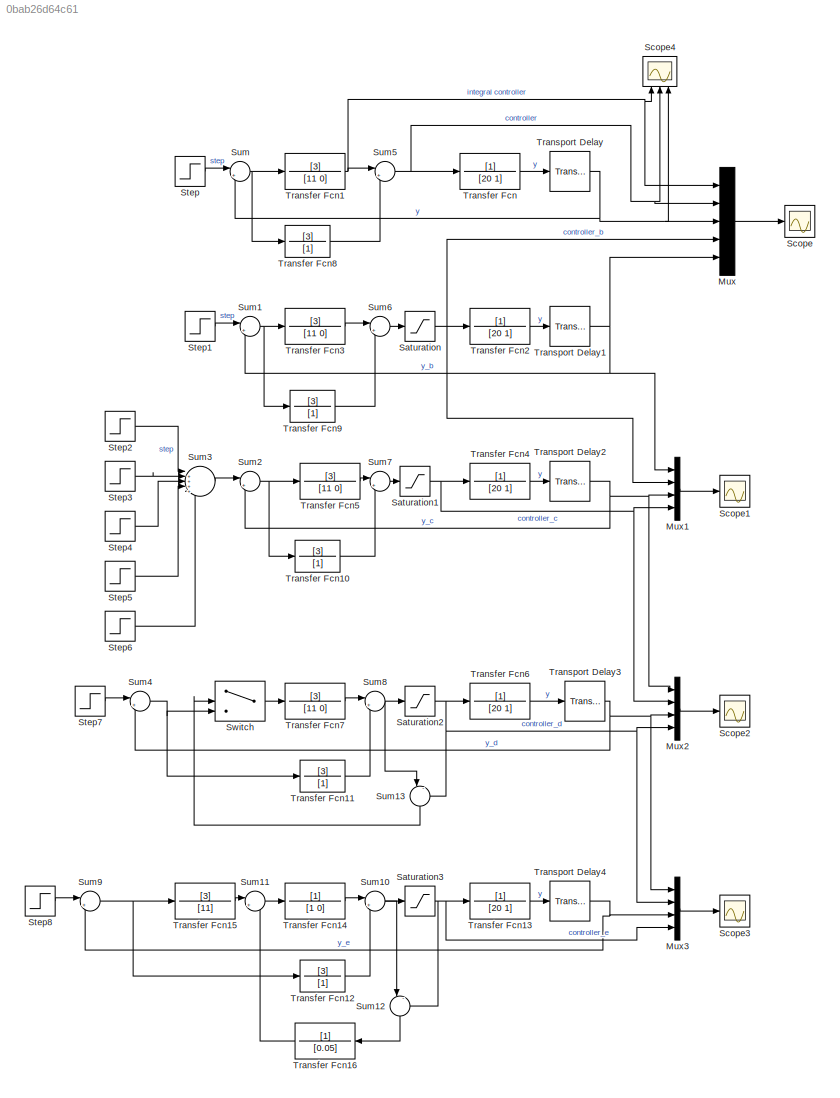
MODEL slx_0bab26d64c61
KIND model
CONFIG AbsTol = auto
CONFIG EnableMultiTasking = off
CONFIG FixedStep = auto
CONFIG MaxStep = auto
CONFIG MinStep = auto
CONFIG RelTol = 1e-3
CONFIG SampleTimeConstraint = Unconstrained
CONFIG SolverName = VariableStepAuto
CONFIG StartTime = 0.0
CONFIG StopTime = 100
BLOCK [Mux] Mux
  DisplayOption = bar
  Inputs = 5
  Ports = [5, 1]
BLOCK [Mux] Mux1
  DisplayOption = bar
  Ports = [4, 1]
BLOCK [Mux] Mux2
  DisplayOption = bar
  Ports = [4, 1]
BLOCK [Mux] Mux3
  DisplayOption = bar
  Ports = [4, 1]
BLOCK [Saturate] Saturation
  LowerLimit = -2
  UpperLimit = 2
BLOCK [Saturate] Saturation1
  LowerLimit = -2
  UpperLimit = 2
BLOCK [Saturate] Saturation2
  LowerLimit = -2
  UpperLimit = 2
BLOCK [Saturate] Saturation3
  LowerLimit = -2
  UpperLimit = 2
BLOCK [Scope] Scope
  Floating = off
  NumInputPorts = 1
  Ports = [1]
  ScopeSpecificationString = Simulink.scopes.TimeScopeBlockCfg('CurrentConfiguration', extmgr.ConfigurationSet(extmgr.Configuration('Core','General UI',true,'FigureColor',[1 1 1]),extmgr.Configuration('Core','Source UI',true),extmgr.Configuration('Sources','WiredSimulink',true,'DataLoggingVariableName','ScopeData1'),extmgr.Configuration('Visuals','Time Domain',true,'SerializedDisplays',{struct('MinYLimReal','-0.51108','MaxYLi...<+1578ch>
BLOCK [Scope] Scope1
  Floating = off
  NumInputPorts = 1
  Ports = [1]
  ScopeSpecificationString = Simulink.scopes.TimeScopeBlockCfg('CurrentConfiguration', extmgr.ConfigurationSet(extmgr.Configuration('Core','General UI',true,'FigureColor',[1 1 1]),extmgr.Configuration('Core','Source UI',true),extmgr.Configuration('Sources','WiredSimulink',true),extmgr.Configuration('Visuals','Time Domain',true,'SerializedDisplays',{struct('MinYLimReal','-0.25','MaxYLimReal','2.25','YLabelReal','','MinYLimMag'...<+1504ch>
BLOCK [Scope] Scope2
  Floating = off
  NumInputPorts = 1
  Ports = [1]
  ScopeSpecificationString = Simulink.scopes.TimeScopeBlockCfg('CurrentConfiguration', extmgr.ConfigurationSet(extmgr.Configuration('Core','General UI',true,'FigureColor',[1 1 1]),extmgr.Configuration('Core','Source UI',true),extmgr.Configuration('Sources','WiredSimulink',true,'DataLoggingVariableName','ScopeData1'),extmgr.Configuration('Visuals','Time Domain',true,'SerializedDisplays',{struct('MinYLimReal','-0.25','MaxYLimRe...<+1543ch>
BLOCK [Scope] Scope3
  Floating = off
  NumInputPorts = 1
  Ports = [1]
  ScopeSpecificationString = Simulink.scopes.TimeScopeBlockCfg('CurrentConfiguration', extmgr.ConfigurationSet(extmgr.Configuration('Core','General UI',true,'FigureColor',[1 1 1]),extmgr.Configuration('Core','Source UI',true),extmgr.Configuration('Sources','WiredSimulink',true,'DataLoggingVariableName','ScopeData1'),extmgr.Configuration('Visuals','Time Domain',true,'SerializedDisplays',{struct('MinYLimReal','-0.25','MaxYLimRe...<+1543ch>
BLOCK [Scope] Scope4
  Floating = off
  NameLocation = right
  NumInputPorts = 3
  Ports = [3]
  ScopeSpecificationString = Simulink.scopes.TimeScopeBlockCfg('CurrentConfiguration', extmgr.ConfigurationSet(extmgr.Configuration('Core','General UI',true,'FigureColor',[1 1 1]),extmgr.Configuration('Core','Source UI',true),extmgr.Configuration('Sources','WiredSimulink',true,'DataLoggingVariableName','ScopeData1'),extmgr.Configuration('Visuals','Time Domain',true,'SerializedDisplays',{struct('MinYLimReal','-0.51108','MaxYLi...<+1598ch>
BLOCK [Step] Step
  SampleTime = 0
  Time = 0
BLOCK [Step] Step1
  SampleTime = 0
  Time = 0
BLOCK [Step] Step2
  After = 0.2
  SampleTime = 0
  Time = 0
BLOCK [Step] Step3
  After = 0.2
  SampleTime = 0
  Time = 5
BLOCK [Step] Step4
  After = 0.2
  SampleTime = 0
  Time = 10
BLOCK [Step] Step5
  After = 0.2
  SampleTime = 0
  Time = 15
BLOCK [Step] Step6
  After = 0.2
  SampleTime = 0
  Time = 20
BLOCK [Step] Step7
  SampleTime = 0
  Time = 0
BLOCK [Step] Step8
  SampleTime = 0
  Time = 0
BLOCK [Sum] Sum
  Inputs = |+-
  Ports = [2, 1]
BLOCK [Sum] Sum1
  Inputs = |+-
  Ports = [2, 1]
BLOCK [Sum] Sum10
  Inputs = |++
  Ports = [2, 1]
BLOCK [Sum] Sum11
  Inputs = |++
  Ports = [2, 1]
BLOCK [Sum] Sum12
  Inputs = |-+
  NameLocation = left
  Ports = [2, 1]
BLOCK [Sum] Sum13
  Inputs = |-+
  NameLocation = left
  Ports = [2, 1]
BLOCK [Sum] Sum2
  Inputs = |+-
  Ports = [2, 1]
BLOCK [Sum] Sum3
  Inputs = |+++++
  Ports = [5, 1]
BLOCK [Sum] Sum4
  Inputs = |+-
  Ports = [2, 1]
BLOCK [Sum] Sum5
  Inputs = |++
  Ports = [2, 1]
BLOCK [Sum] Sum6
  Inputs = |++
  Ports = [2, 1]
BLOCK [Sum] Sum7
  Inputs = |++
  Ports = [2, 1]
BLOCK [Sum] Sum8
  Inputs = |++
  Ports = [2, 1]
BLOCK [Sum] Sum9
  Inputs = |+-
  Ports = [2, 1]
BLOCK [Switch] Switch
  Criteria = u2 ~= 0
  InputSameDT = off
  SaturateOnIntegerOverflow = off
BLOCK [TransferFcn] Transfer Fcn
  Denominator = [20 1]
BLOCK [TransferFcn] Transfer Fcn1
  Denominator = [11 0]
  Numerator = [3]
BLOCK [TransferFcn] Transfer Fcn10
  Denominator = [1]
  Numerator = [3]
BLOCK [TransferFcn] Transfer Fcn11
  Denominator = [1]
  Numerator = [3]
BLOCK [TransferFcn] Transfer Fcn12
  Denominator = [1]
  Numerator = [3]
BLOCK [TransferFcn] Transfer Fcn13
  Denominator = [20 1]
BLOCK [TransferFcn] Transfer Fcn14
  Denominator = [1 0]
BLOCK [TransferFcn] Transfer Fcn15
  Denominator = [11]
  Numerator = [3]
BLOCK [TransferFcn] Transfer Fcn16
  Denominator = [0.05]
  NameLocation = top
BLOCK [TransferFcn] Transfer Fcn2
  Denominator = [20 1]
BLOCK [TransferFcn] Transfer Fcn3
  Denominator = [11 0]
  Numerator = [3]
BLOCK [TransferFcn] Transfer Fcn4
  Denominator = [20 1]
BLOCK [TransferFcn] Transfer Fcn5
  Denominator = [11 0]
  Numerator = [3]
BLOCK [TransferFcn] Transfer Fcn6
  Denominator = [20 1]
BLOCK [TransferFcn] Transfer Fcn7
  Denominator = [11 0]
  Numerator = [3]
BLOCK [TransferFcn] Transfer Fcn8
  Denominator = [1]
  Numerator = [3]
BLOCK [TransferFcn] Transfer Fcn9
  Denominator = [1]
  Numerator = [3]
BLOCK [TransportDelay] Transport Delay
  DelayTime = 4
  Ports = [1, 1]
BLOCK [TransportDelay] Transport Delay1
  DelayTime = 4
  Ports = [1, 1]
BLOCK [TransportDelay] Transport Delay2
  DelayTime = 4
  Ports = [1, 1]
BLOCK [TransportDelay] Transport Delay3
  DelayTime = 4
  Ports = [1, 1]
BLOCK [TransportDelay] Transport Delay4
  DelayTime = 4
  Ports = [1, 1]
LINE Mux1:1 -> Scope1:1
LINE Mux2:1 -> Scope2:1
LINE Mux3:1 -> Scope3:1
LINE Mux:1 -> Scope:1
NET Saturation1:1 -> Mux1:4, Mux2:2, Transfer Fcn4:1
NET Saturation2:1 -> Mux2:4, Mux3:2, Sum13:2, Transfer Fcn6:1
NET Saturation3:1 -> Mux3:4, Sum12:2, Transfer Fcn13:1
NET Saturation:1 -> Mux1:2, Mux:4, Transfer Fcn2:1
LINE Step1:1 -> Sum1:1
LINE Step2:1 -> Sum3:1
LINE Step3:1 -> Sum3:2
LINE Step4:1 -> Sum3:3
LINE Step5:1 -> Sum3:4
LINE Step6:1 -> Sum3:5
LINE Step7:1 -> Sum4:1
LINE Step8:1 -> Sum9:1
LINE Step:1 -> Sum:1
NET Sum10:1 -> Saturation3:1, Sum12:1
LINE Sum11:1 -> Transfer Fcn14:1
LINE Sum12:1 -> Transfer Fcn16:1
LINE Sum13:1 -> Switch:2
NET Sum1:1 -> Transfer Fcn3:1, Transfer Fcn9:1
NET Sum2:1 -> Transfer Fcn10:1, Transfer Fcn5:1
LINE Sum3:1 -> Sum2:1
NET Sum4:1 -> Switch:3, Transfer Fcn11:1
NET Sum5:1 -> Mux:2, Scope4:2, Transfer Fcn:1
LINE Sum6:1 -> Saturation:1
LINE Sum7:1 -> Saturation1:1
NET Sum8:1 -> Saturation2:1, Sum13:1
NET Sum9:1 -> Transfer Fcn12:1, Transfer Fcn15:1
NET Sum:1 -> Transfer Fcn1:1, Transfer Fcn8:1
LINE Switch:1 -> Transfer Fcn7:1
LINE Transfer Fcn10:1 -> Sum7:2
LINE Transfer Fcn11:1 -> Sum8:2
LINE Transfer Fcn12:1 -> Sum10:2
LINE Transfer Fcn13:1 -> Transport Delay4:1
LINE Transfer Fcn14:1 -> Sum10:1
LINE Transfer Fcn15:1 -> Sum11:1
LINE Transfer Fcn16:1 -> Sum11:2
NET Transfer Fcn1:1 -> Mux:1, Scope4:1, Sum5:1
LINE Transfer Fcn2:1 -> Transport Delay1:1
LINE Transfer Fcn3:1 -> Sum6:1
LINE Transfer Fcn4:1 -> Transport Delay2:1
LINE Transfer Fcn5:1 -> Sum7:1
LINE Transfer Fcn6:1 -> Transport Delay3:1
LINE Transfer Fcn7:1 -> Sum8:1
LINE Transfer Fcn8:1 -> Sum5:2
LINE Transfer Fcn9:1 -> Sum6:2
LINE Transfer Fcn:1 -> Transport Delay:1
NET Transport Delay1:1 -> Mux1:1, Mux:5, Sum1:2
NET Transport Delay2:1 -> Mux1:3, Mux2:1, Sum2:2
NET Transport Delay3:1 -> Mux2:3, Mux3:1, Sum4:2
NET Transport Delay4:1 -> Mux3:3, Sum9:2
NET Transport Delay:1 -> Mux:3, Scope4:3, Sum:2
note: NET lines group one-source signal fan-out (src -> all destinations, sorted); 1:1 wires keep LINE
